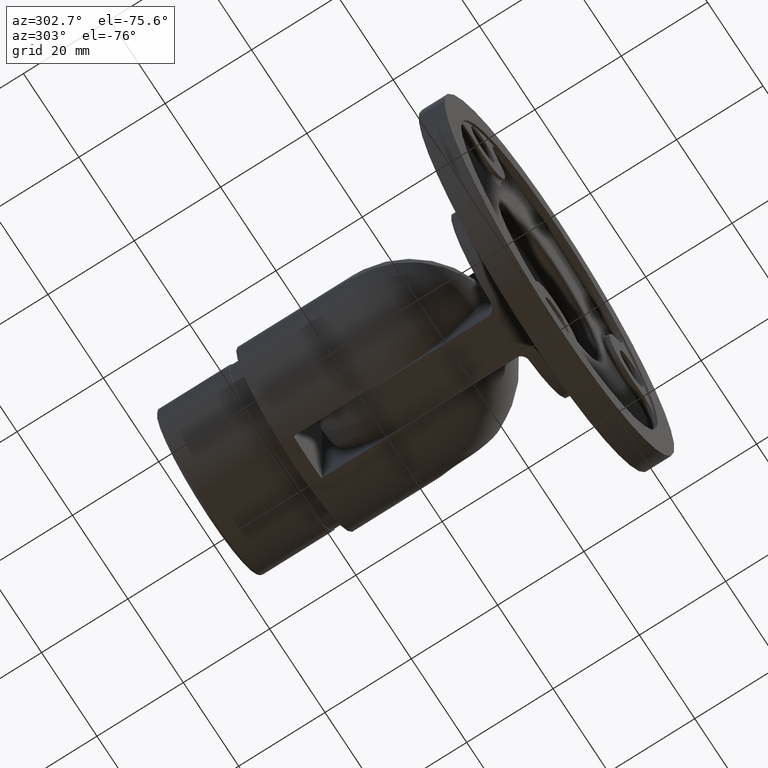
[diagram: clean part render]
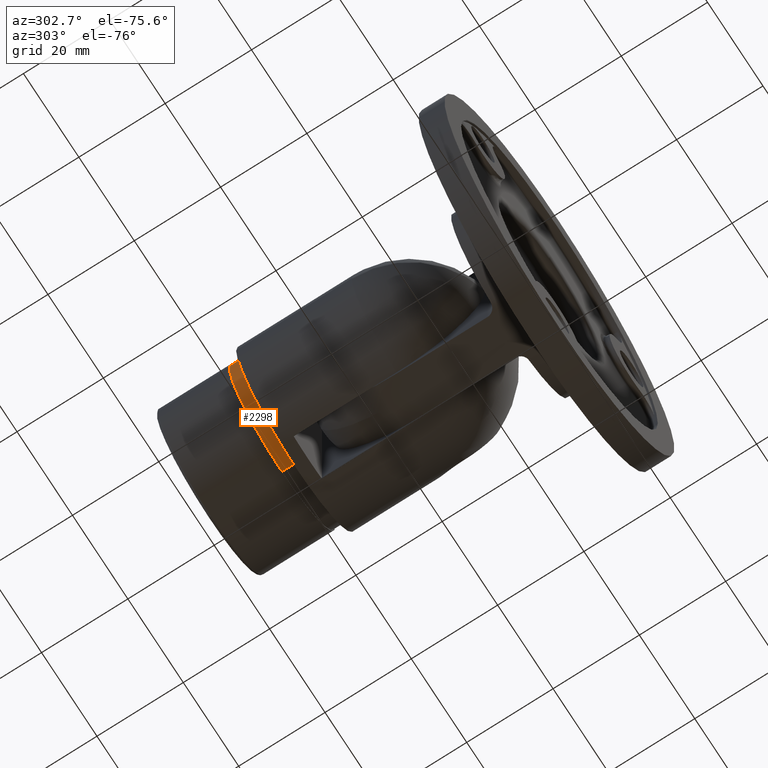
[diagram: same view with one face highlighted and labeled with its STEP entity id]
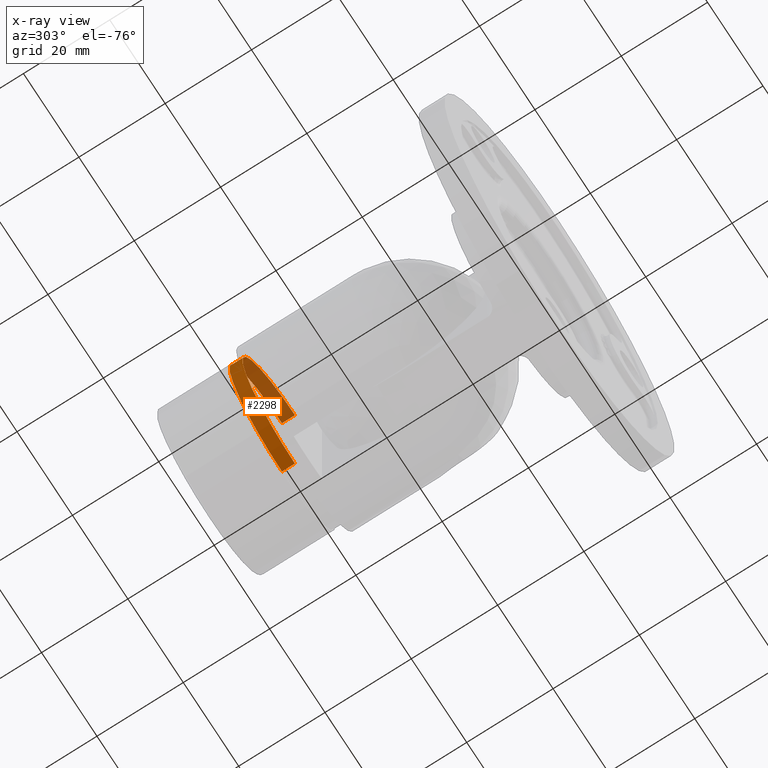
[diagram: x-ray of the same camera — body ghosted, the highlighted face saturated]
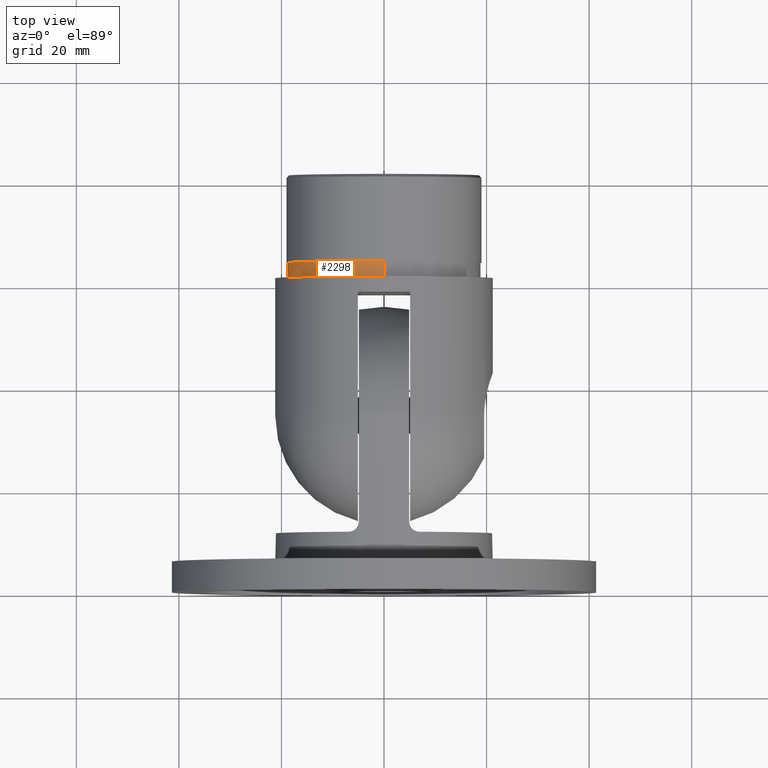
[diagram: same view with one face highlighted and labeled with its STEP entity id]
A machine part, auxiliary view. The second image highlights one B-rep face of the part: STEP entity #2298.
The next image is the same camera in x-ray: the body ghosted, the highlighted face saturated — about 37% of this face is hidden behind the body in this view.
A second angle (top view) of the same face is appended — the face is thin or edge-on in the first view.
In plain terms, the highlighted cylindrical surface (partial cylindrical patch) has radius 18.95 mm, axis along (-0, -1, -0).
Its self-contained STEP definition (entity closure, byte-faithful):
#461 = VECTOR ( 'NONE', #9186, 1000.000000000000000 ) ;
#643 = DIRECTION ( 'NONE',  ( -0.000000000000000000, -1.000000000000000000, -0.000000000000000000 ) ) ;
#2298 = ADVANCED_FACE ( 'NONE', ( #11785 ), #3576, .T. ) ;
#3576 = CYLINDRICAL_SURFACE ( 'NONE', #12129, 18.94999999999999929 ) ;
#4075 = CARTESIAN_POINT ( 'NONE',  ( 0.000000000000000000, 51.00000000000001421, 0.000000000000000000 ) ) ;
#4303 = DIRECTION ( 'NONE',  ( 0.000000000000000000, 1.000000000000000000, 0.000000000000000000 ) ) ;
#4711 = EDGE_LOOP ( 'NONE', ( #20355, #10624, #20747, #12279 ) ) ;
#5127 = CARTESIAN_POINT ( 'NONE',  ( 0.000000000000000000, 51.00000000000001421, 0.000000000000000000 ) ) ;
#5328 = VERTEX_POINT ( 'NONE', #10164 ) ;
#6051 = VERTEX_POINT ( 'NONE', #10267 ) ;
#7368 = CARTESIAN_POINT ( 'NONE',  ( 0.000000000000000000, 51.00000000000001421, -18.94999999999999929 ) ) ;
#7461 = DIRECTION ( 'NONE',  ( 0.000000000000000000, 0.000000000000000000, 1.000000000000000000 ) ) ;
#7919 = EDGE_CURVE ( 'NONE', #10621, #17477, #21257, .T. ) ;
#8584 = CIRCLE ( 'NONE', #16527, 18.94999999999999929 ) ;
#9186 = DIRECTION ( 'NONE',  ( -0.000000000000000000, -1.000000000000000000, -0.000000000000000000 ) ) ;
#10164 = CARTESIAN_POINT ( 'NONE',  ( 0.000000000000000000, 48.00000000000001421, -18.94999999999999929 ) ) ;
#10267 = CARTESIAN_POINT ( 'NONE',  ( 0.000000000000000000, 51.00000000000001421, -18.94999999999999929 ) ) ;
#10621 = VERTEX_POINT ( 'NONE', #18421 ) ;
#10624 = ORIENTED_EDGE ( 'NONE', *, *, #16358, .F. ) ;
#10761 = CARTESIAN_POINT ( 'NONE',  ( 0.000000000000000000, 48.00000000000001421, 0.000000000000000000 ) ) ;
#11741 = DIRECTION ( 'NONE',  ( -0.000000000000000000, -1.000000000000000000, -0.000000000000000000 ) ) ;
#11785 = FACE_OUTER_BOUND ( 'NONE', #4711, .T. ) ;
#11950 = VECTOR ( 'NONE', #643, 1000.000000000000000 ) ;
#11972 = DIRECTION ( 'NONE',  ( 0.000000000000000000, 0.000000000000000000, -1.000000000000000000 ) ) ;
#12129 = AXIS2_PLACEMENT_3D ( 'NONE', #5127, #11741, #11972 ) ;
#12279 = ORIENTED_EDGE ( 'NONE', *, *, #19024, .T. ) ;
#13423 = CIRCLE ( 'NONE', #13599, 18.94999999999999929 ) ;
#13599 = AXIS2_PLACEMENT_3D ( 'NONE', #10761, #4303, #20004 ) ;
#16334 = CARTESIAN_POINT ( 'NONE',  ( 2.320705684384234292E-15, 51.00000000000001421, 18.94999999999999929 ) ) ;
#16358 = EDGE_CURVE ( 'NONE', #6051, #10621, #8584, .T. ) ;
#16527 = AXIS2_PLACEMENT_3D ( 'NONE', #4075, #18143, #7461 ) ;
#17477 = VERTEX_POINT ( 'NONE', #20886 ) ;
#18143 = DIRECTION ( 'NONE',  ( 0.000000000000000000, 1.000000000000000000, 0.000000000000000000 ) ) ;
#18421 = CARTESIAN_POINT ( 'NONE',  ( 2.320705684384234292E-15, 51.00000000000001421, 18.94999999999999929 ) ) ;
#19024 = EDGE_CURVE ( 'NONE', #5328, #17477, #13423, .T. ) ;
#19596 = LINE ( 'NONE', #7368, #461 ) ;
#19868 = EDGE_CURVE ( 'NONE', #6051, #5328, #19596, .T. ) ;
#20004 = DIRECTION ( 'NONE',  ( 0.000000000000000000, 0.000000000000000000, 1.000000000000000000 ) ) ;
#20355 = ORIENTED_EDGE ( 'NONE', *, *, #7919, .F. ) ;
#20747 = ORIENTED_EDGE ( 'NONE', *, *, #19868, .T. ) ;
#20886 = CARTESIAN_POINT ( 'NONE',  ( 2.320705684384234292E-15, 48.00000000000001421, 18.94999999999999929 ) ) ;
#21257 = LINE ( 'NONE', #16334, #11950 ) ;